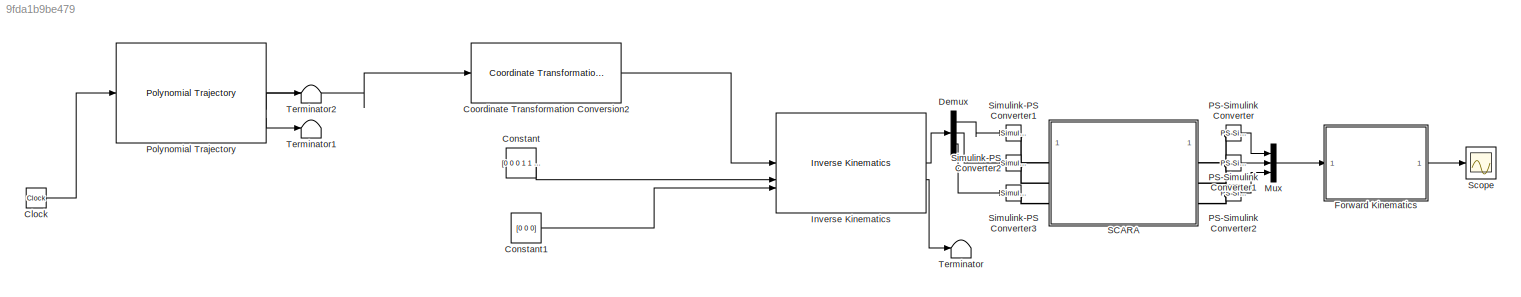
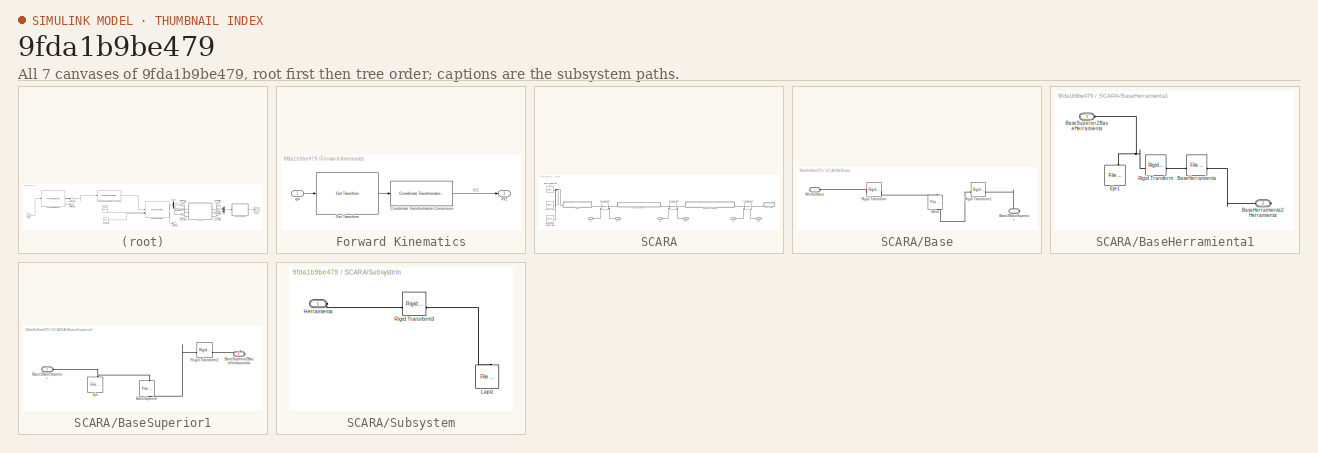
[diagram: thumbnail index - all 7 canvases of the model, root first then tree order]
MODEL slx_9fda1b9be479
KIND model
CONFIG AbsTol = auto
CONFIG EnableMultiTasking = off
CONFIG FixedStep = auto
CONFIG MaxStep = auto
CONFIG MinStep = auto
CONFIG RelTol = 1e-3
CONFIG SampleTimeConstraint = Unconstrained
CONFIG SolverName = ode45
CONFIG StartTime = 0.0
CONFIG StopTime = n/10
BLOCK [Clock] Clock
BLOCK [Constant] Constant
  Value = [0 0 0 1 1 1]
BLOCK [Constant] Constant1
  SampleTime = Ts
  Value = [0 0 0]
BLOCK [Reference] Coordinate Transformation Conversion2  REF=robotcorelib/Coordinate Transformation Conversion
  LibrarySourceBlock = navlib/Utilities/Coordinate Transformation Conversion
  SourceBlock = robotcorelib/Coordinate Transformation Conversion
  SourceType = robotics.slcore.internal.block.CoordinateTransformationConversion
BLOCK [Demux] Demux
  Outputs = 3
BLOCK [SubSystem] Forward Kinematics
BLOCK [Reference] Forward Kinematics/Coordinate Transformation Conversion  REF=robotcorelib/Coordinate Transformation Conversion
  LibrarySourceBlock = robotutilslib/Coordinate Transformation Conversion
  SourceBlock = robotcorelib/Coordinate Transformation Conversion
  SourceType = robotics.slcore.internal.block.CoordinateTransformationConversion
BLOCK [Reference] Forward Kinematics/Get Transform  REF=robotmaniplib/Get Transform
  SourceBlock = robotmaniplib/Get Transform
  SourceType = Get Transform
BLOCK [Outport] Forward Kinematics/XYZ
BLOCK [Inport] Forward Kinematics/qm
BLOCK [Reference] Inverse Kinematics  REF=robotmaniplib/Inverse Kinematics
  SourceBlock = robotmaniplib/Inverse Kinematics
  SourceType = Inverse Kinematics
BLOCK [Mux] Mux
  DisplayOption = bar
  Inputs = 3
BLOCK [Reference] PS-Simulink Converter  REF=nesl_utility/PS-Simulink
Converter
  SourceBlock = nesl_utility/PS-Simulink\nConverter
  SourceType = PS-Simulink\nConverter
BLOCK [Reference] PS-Simulink Converter1  REF=nesl_utility/PS-Simulink
Converter
  SourceBlock = nesl_utility/PS-Simulink\nConverter
  SourceType = PS-Simulink\nConverter
BLOCK [Reference] PS-Simulink Converter2  REF=nesl_utility/PS-Simulink
Converter
  SourceBlock = nesl_utility/PS-Simulink\nConverter
  SourceType = PS-Simulink\nConverter
BLOCK [Reference] Polynomial Trajectory  REF=robotcorelib/Polynomial Trajectory
  LibrarySourceBlock = robotutilslib/Polynomial Trajectory
  SourceBlock = robotcorelib/Polynomial Trajectory
  SourceType = robotics.slcore.internal.block.PolyTrajSys
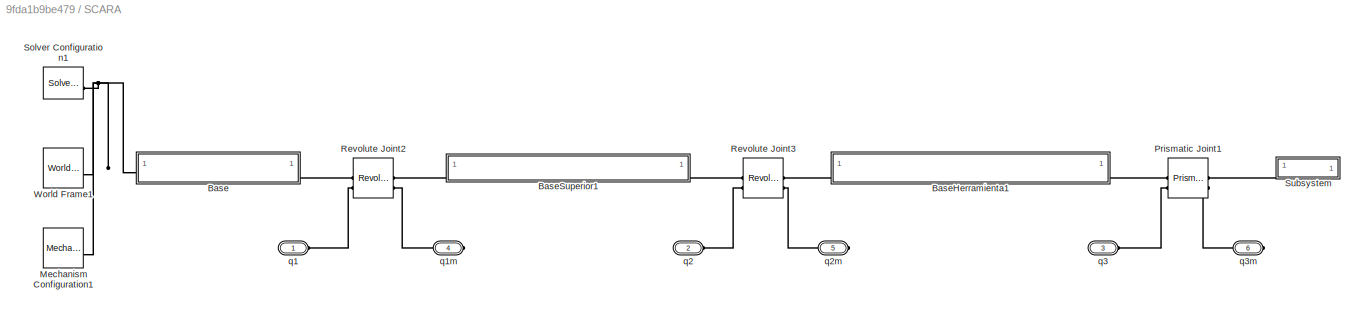
BLOCK [SubSystem] SCARA
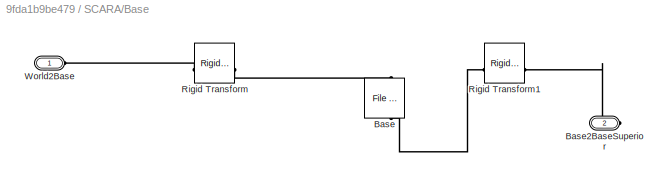
BLOCK [SubSystem] SCARA/Base
BLOCK [Reference] SCARA/Base/Base  REF=sm_lib/Body Elements/File Solid
  NameLocation = left
  SourceBlock = sm_lib/Body Elements/File Solid
  SourceType = File Solid
BLOCK [PMIOPort] SCARA/Base/Base2BaseSuperior
  Port = 2
  Side = Right
BLOCK [Reference] SCARA/Base/Rigid Transform  REF=sm_lib/Frames and
Transforms/Rigid
Transform
  SourceBlock = sm_lib/Frames and\nTransforms/Rigid\nTransform
  SourceType = Rigid\nTransform
BLOCK [Reference] SCARA/Base/Rigid Transform1  REF=sm_lib/Frames and
Transforms/Rigid
Transform
  SourceBlock = sm_lib/Frames and\nTransforms/Rigid\nTransform
  SourceType = Rigid\nTransform
BLOCK [PMIOPort] SCARA/Base/World2Base
  Side = Left
BLOCK [SubSystem] SCARA/BaseHerramienta1
BLOCK [Reference] SCARA/BaseHerramienta1/BaseHerramienta  REF=sm_lib/Body Elements/File Solid
  SourceBlock = sm_lib/Body Elements/File Solid
  SourceType = File Solid
BLOCK [PMIOPort] SCARA/BaseHerramienta1/BaseHerramienta2Herramienta
  Port = 2
  Side = Right
BLOCK [PMIOPort] SCARA/BaseHerramienta1/BaseSuperior2BaseHerramienta
  Side = Left
BLOCK [Reference] SCARA/BaseHerramienta1/Eje1  REF=sm_lib/Body Elements/File Solid
  NameLocation = left
  SourceBlock = sm_lib/Body Elements/File Solid
  SourceType = File Solid
BLOCK [Reference] SCARA/BaseHerramienta1/Rigid Transform  REF=sm_lib/Frames and
Transforms/Rigid
Transform
  SourceBlock = sm_lib/Frames and\nTransforms/Rigid\nTransform
  SourceType = Rigid\nTransform
BLOCK [SubSystem] SCARA/BaseSuperior1
BLOCK [PMIOPort] SCARA/BaseSuperior1/Base2BaseSuperior
  Port = 2
  Side = Left
BLOCK [Reference] SCARA/BaseSuperior1/BaseSuperior  REF=sm_lib/Body Elements/File Solid
  NameLocation = left
  SourceBlock = sm_lib/Body Elements/File Solid
  SourceType = File Solid
BLOCK [PMIOPort] SCARA/BaseSuperior1/BaseSuperior2BaseHerramienta
  Side = Right
BLOCK [Reference] SCARA/BaseSuperior1/Eje  REF=sm_lib/Body Elements/File Solid
  NameLocation = left
  SourceBlock = sm_lib/Body Elements/File Solid
  SourceType = File Solid
BLOCK [Reference] SCARA/BaseSuperior1/Rigid Transform2  REF=sm_lib/Frames and
Transforms/Rigid
Transform
  SourceBlock = sm_lib/Frames and\nTransforms/Rigid\nTransform
  SourceType = Rigid\nTransform
BLOCK [Reference] SCARA/Mechanism Configuration1  REF=sm_lib/Utilities/Mechanism
Configuration
  SourceBlock = sm_lib/Utilities/Mechanism\nConfiguration
  SourceType = Mechanism\nConfiguration
BLOCK [Reference] SCARA/Prismatic Joint1  REF=sm_lib/Joints/Prismatic
Joint
  SourceBlock = sm_lib/Joints/Prismatic\nJoint
  SourceType = Prismatic\nJoint
BLOCK [Reference] SCARA/Revolute Joint2  REF=sm_lib/Joints/Revolute Joint
  SourceBlock = sm_lib/Joints/Revolute Joint
  SourceType = Revolute Joint
BLOCK [Reference] SCARA/Revolute Joint3  REF=sm_lib/Joints/Revolute Joint
  SourceBlock = sm_lib/Joints/Revolute Joint
  SourceType = Revolute Joint
BLOCK [Reference] SCARA/Solver Configuration1  REF=nesl_utility/Solver
Configuration
  SourceBlock = nesl_utility/Solver\nConfiguration
  SourceType = Solver\nConfiguration
BLOCK [SubSystem] SCARA/Subsystem
BLOCK [PMIOPort] SCARA/Subsystem/Herramienta
  Side = Left
BLOCK [Reference] SCARA/Subsystem/Lapiz  REF=sm_lib/Body Elements/File Solid
  NameLocation = left
  SourceBlock = sm_lib/Body Elements/File Solid
  SourceType = File Solid
BLOCK [Reference] SCARA/Subsystem/Rigid Transform3  REF=sm_lib/Frames and
Transforms/Rigid
Transform
  SourceBlock = sm_lib/Frames and\nTransforms/Rigid\nTransform
  SourceType = Rigid\nTransform
BLOCK [Reference] SCARA/World Frame1  REF=sm_lib/Frames and
Transforms/World Frame
  SourceBlock = sm_lib/Frames and\nTransforms/World Frame
  SourceType = World Frame
BLOCK [PMIOPort] SCARA/q1
  Side = Left
BLOCK [PMIOPort] SCARA/q1m
  NameLocation = top
  Port = 4
  Side = Right
BLOCK [PMIOPort] SCARA/q2
  Port = 2
  Side = Left
BLOCK [PMIOPort] SCARA/q2m
  NameLocation = top
  Port = 5
  Side = Right
BLOCK [PMIOPort] SCARA/q3
  Port = 3
  Side = Left
BLOCK [PMIOPort] SCARA/q3m
  NameLocation = top
  Port = 6
  Side = Right
BLOCK [Scope] Scope
  ActiveDisplayYMaximum = 0.33808139265392378
  ActiveDisplayYMinimum = -0.21818457233282618
  Floating = off
  GraphicalSettings = {"AxesScalingProperties":{"AlignXAxis":"Center","AlignYAxis":"Center","AutoScaleXAxisLimits":false,"AxesScaling":"Manual","AxesScalingNumUpdates":10,"ExpandOnly":true,"ScaleAxesLimitsAtStop":false,"XAxisDataRange":100,"YAxisDataRange":80},"Cursors":{"CursorChannels":[1,2],"Enabled":true,"Horizontal":false,"LinkToWaveform":true,"LockSpacing":1,"ShowMeasurement":true,"ShowPanel":false,"ShowText":fal...<+2580ch>
  MultipleDisplayCache = [{"MaxYLimMag":0.24029,"MaxYLimReal":0.33808139265392378,"MinYLimMag":0,"MinYLimReal":-0.21818457233282618,"PlotAsMagnitudePhase":false,"ShowGrid":true,"ShowLegend":false,"Title":"%<SignalLabel>","YLabel":""}]
  NumInputPorts = 1
  ScopeFrameLocation = window
  WasSavedAsWebScope = on
  WindowPosition = [1.000000,41.000000,1920.000000,963.000000,]
BLOCK [Reference] Simulink-PS Converter1  REF=nesl_utility/Simulink-PS
Converter
  SourceBlock = nesl_utility/Simulink-PS\nConverter
  SourceType = Simulink-PS\nConverter
BLOCK [Reference] Simulink-PS Converter2  REF=nesl_utility/Simulink-PS
Converter
  SourceBlock = nesl_utility/Simulink-PS\nConverter
  SourceType = Simulink-PS\nConverter
BLOCK [Reference] Simulink-PS Converter3  REF=nesl_utility/Simulink-PS
Converter
  SourceBlock = nesl_utility/Simulink-PS\nConverter
  SourceType = Simulink-PS\nConverter
BLOCK [Terminator] Terminator
BLOCK [Terminator] Terminator1
BLOCK [Terminator] Terminator2
LINE Clock:1 -> Polynomial Trajectory:1
LINE Constant1:1 -> Inverse Kinematics:3
LINE Constant:1 -> Inverse Kinematics:2
LINE Coordinate Transformation Conversion2:1 -> Inverse Kinematics:1
LINE Demux:1 -> Simulink-PS Converter1:1
LINE Demux:2 -> Simulink-PS Converter2:1
LINE Demux:3 -> Simulink-PS Converter3:1
LINE Forward Kinematics/Coordinate Transformation Conversion:1 -> Forward Kinematics/XYZ:1
LINE Forward Kinematics/Get Transform:1 -> Forward Kinematics/Coordinate Transformation Conversion:1
LINE Forward Kinematics/qm:1 -> Forward Kinematics/Get Transform:1
LINE Forward Kinematics:1 -> Scope:1
LINE Inverse Kinematics:1 -> Demux:1
LINE Inverse Kinematics:2 -> Terminator:1
LINE Mux:1 -> Forward Kinematics:1
LINE PS-Simulink Converter1:1 -> Mux:2
LINE PS-Simulink Converter2:1 -> Mux:3
LINE PS-Simulink Converter:1 -> Mux:1
LINE Polynomial Trajectory:1 -> Coordinate Transformation Conversion2:1
LINE Polynomial Trajectory:2 -> Terminator2:1
LINE Polynomial Trajectory:3 -> Terminator1:1
PLINE PS-Simulink Converter1:LConn1 -- SCARA:RConn2
PLINE PS-Simulink Converter2:LConn1 -- SCARA:RConn3
PLINE PS-Simulink Converter:LConn1 -- SCARA:RConn1
PLINE SCARA/Base/Base2BaseSuperior:RConn1 -- SCARA/Base/Rigid Transform1:RConn1
PLINE SCARA/Base/Base:LConn1 -- SCARA/Base/Rigid Transform:RConn1
PLINE SCARA/Base/Base:RConn1 -- SCARA/Base/Rigid Transform1:LConn1
PLINE SCARA/Base/Rigid Transform:LConn1 -- SCARA/Base/World2Base:RConn1
PNET net1: SCARA/Base:LConn1 -- SCARA/Mechanism Configuration1:RConn1 -- SCARA/Solver Configuration1:RConn1 -- SCARA/World Frame1:RConn1
PLINE SCARA/Base:RConn1 -- SCARA/Revolute Joint2:LConn1
PLINE SCARA/BaseHerramienta1/BaseHerramienta2Herramienta:RConn1 -- SCARA/BaseHerramienta1/BaseHerramienta:RConn1
PLINE SCARA/BaseHerramienta1/BaseHerramienta:LConn1 -- SCARA/BaseHerramienta1/Rigid Transform:RConn1
PNET net2: SCARA/BaseHerramienta1/BaseSuperior2BaseHerramienta:RConn1 -- SCARA/BaseHerramienta1/Eje1:LConn1 -- SCARA/BaseHerramienta1/Rigid Transform:LConn1
PLINE SCARA/BaseHerramienta1:LConn1 -- SCARA/Revolute Joint3:RConn1
PLINE SCARA/BaseHerramienta1:RConn1 -- SCARA/Prismatic Joint1:LConn1
PNET net3: SCARA/BaseSuperior1/Base2BaseSuperior:RConn1 -- SCARA/BaseSuperior1/BaseSuperior:LConn1 -- SCARA/BaseSuperior1/Eje:LConn1
PLINE SCARA/BaseSuperior1/BaseSuperior2BaseHerramienta:RConn1 -- SCARA/BaseSuperior1/Rigid Transform2:RConn1
PLINE SCARA/BaseSuperior1/BaseSuperior:RConn1 -- SCARA/BaseSuperior1/Rigid Transform2:LConn1
PLINE SCARA/BaseSuperior1:LConn1 -- SCARA/Revolute Joint2:RConn1
PLINE SCARA/BaseSuperior1:RConn1 -- SCARA/Revolute Joint3:LConn1
PLINE SCARA/Prismatic Joint1:LConn2 -- SCARA/q3:RConn1
PLINE SCARA/Prismatic Joint1:RConn1 -- SCARA/Subsystem:LConn1
PLINE SCARA/Prismatic Joint1:RConn2 -- SCARA/q3m:RConn1
PLINE SCARA/Revolute Joint2:LConn2 -- SCARA/q1:RConn1
PLINE SCARA/Revolute Joint2:RConn2 -- SCARA/q1m:RConn1
PLINE SCARA/Revolute Joint3:LConn2 -- SCARA/q2:RConn1
PLINE SCARA/Revolute Joint3:RConn2 -- SCARA/q2m:RConn1
PLINE SCARA/Subsystem/Herramienta:RConn1 -- SCARA/Subsystem/Rigid Transform3:LConn1
PLINE SCARA/Subsystem/Lapiz:LConn1 -- SCARA/Subsystem/Rigid Transform3:RConn1
PLINE SCARA:LConn1 -- Simulink-PS Converter1:RConn1
PLINE SCARA:LConn2 -- Simulink-PS Converter2:RConn1
PLINE SCARA:LConn3 -- Simulink-PS Converter3:RConn1
note: PNET lines group multi-terminal physical nets as a canonical sorted terminal list (undirected conserving connections); 2-terminal nets keep the pairwise PLINE form
